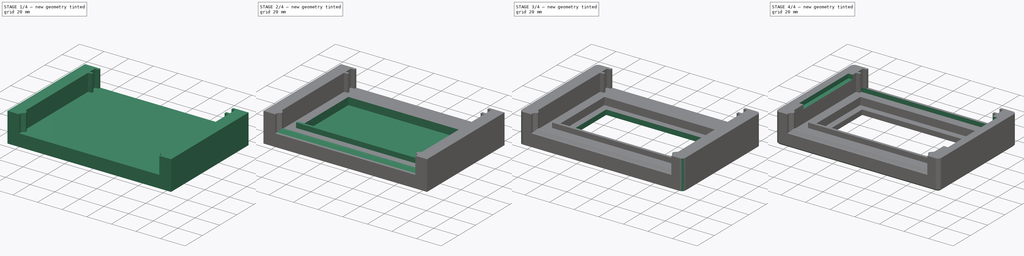
[diagram: build sequence overview — one tinted view per stage of 4, left to right]
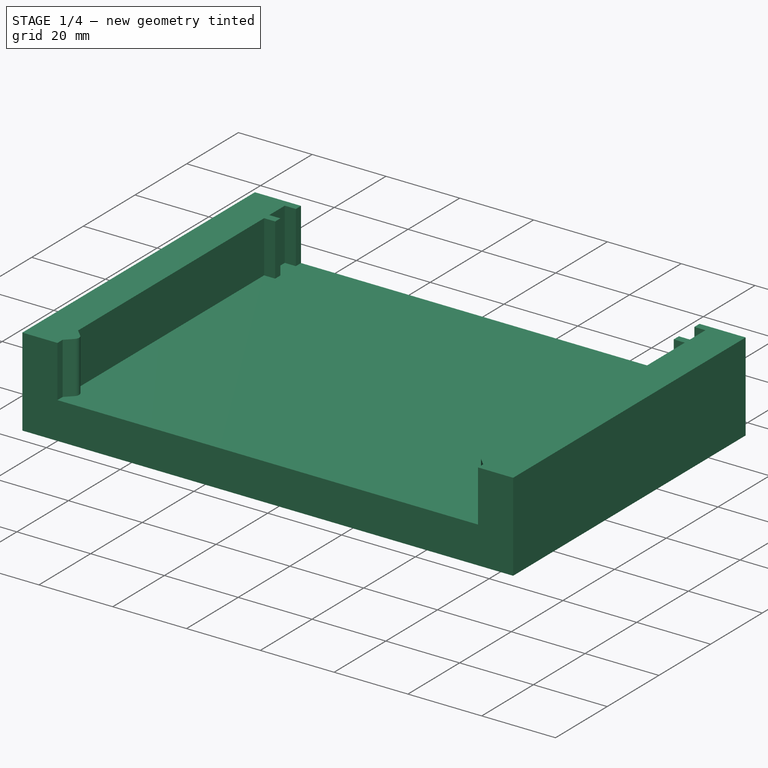
[diagram: stage 1 of 4 — iso view after this stage's code; geometry added in this stage tinted green]
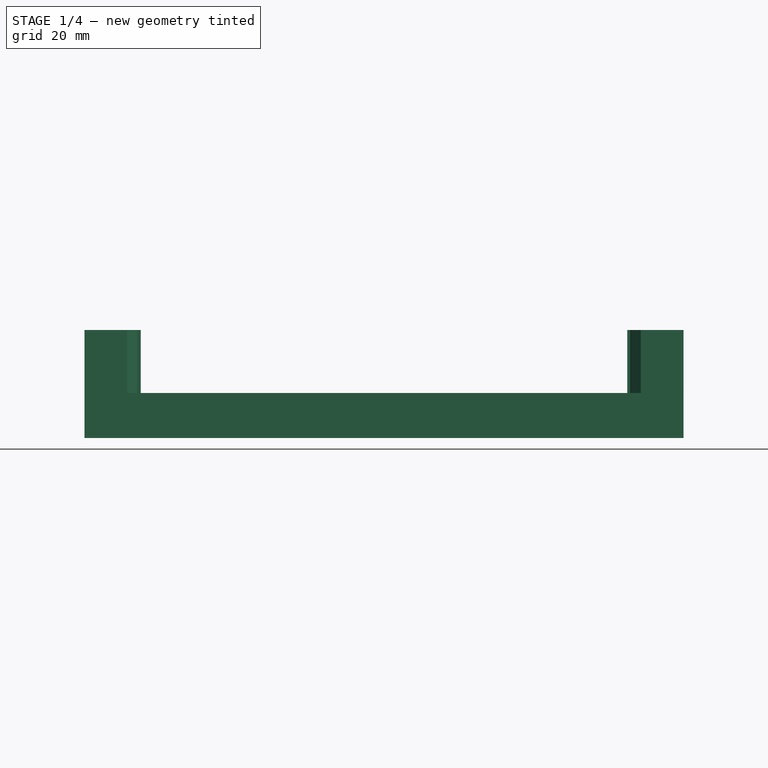
[diagram: stage 1 of 4 — front view after this stage's code; geometry added in this stage tinted green]
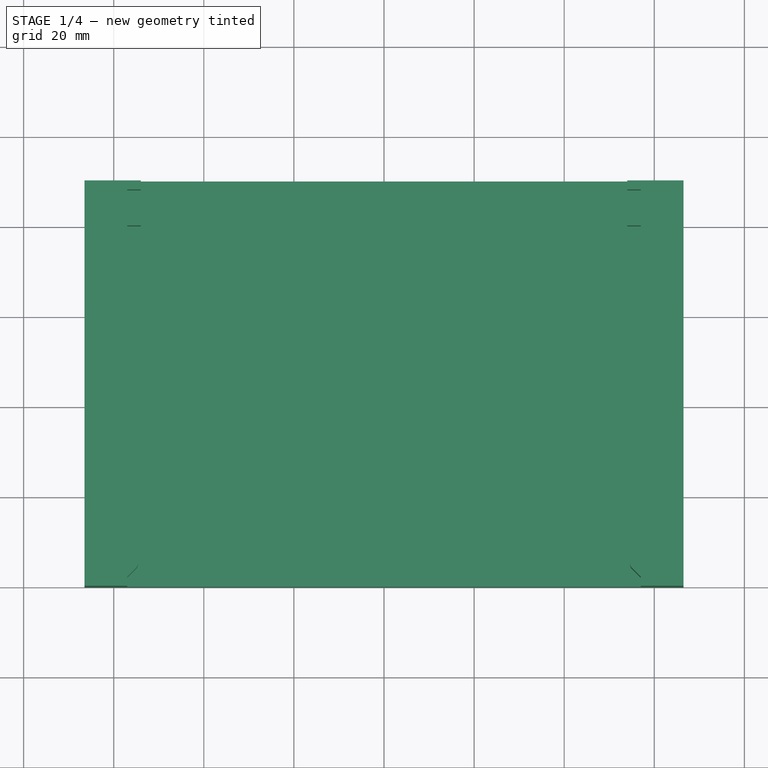
[diagram: stage 1 of 4 — top view after this stage's code; geometry added in this stage tinted green]
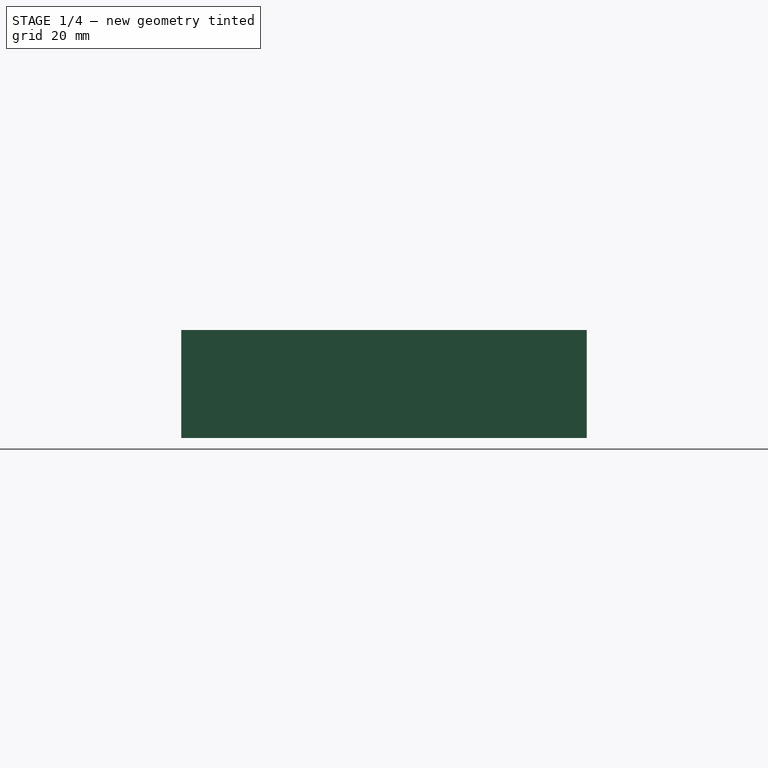
[diagram: stage 1 of 4 — right view after this stage's code; geometry added in this stage tinted green]
FCSTD DOCUMENT  (FreeCAD 0.17R13541 (Git))
Label: BikeTop4
License: All rights reserved
LicenseURL: http://en.wikipedia.org/wiki/All_rights_reserved
objects: Sketcher::SketchObject×8, PartDesign::Pad×4, PartDesign::Pocket×4, PartDesign::Fillet×2, PartDesign::Mirrored×1, PartDesign::Chamfer×1, PartDesign::Body×1
note: 29 computed .brp shape members not serialized (recipe doc carries the construction recipe); baked Part::Feature solids carry a one-line shape summary decoded from their .brp

FEATURE [Sketcher::SketchObject] Sketch
  MapMode = 5
  Support = -> [XY_Plane]
  sketch-geometry (4):
    g0: LineSegment StartX=-66.5 StartY=-40 StartZ=0 EndX=66.5 EndY=-40 EndZ=0
    g1: LineSegment StartX=66.5 StartY=-40 StartZ=0 EndX=66.5 EndY=50 EndZ=0
    g2: LineSegment StartX=66.5 StartY=50 StartZ=0 EndX=-66.5 EndY=50 EndZ=0
    g3: LineSegment StartX=-66.5 StartY=50 StartZ=0 EndX=-66.5 EndY=-40 EndZ=0
  constraints (12):
    c: Coincident(g0,g1)
    c: Coincident(g1,g2)
    c: Coincident(g2,g3)
    c: Coincident(g3,g0)
    c: Horizontal(g0)
    c: Horizontal(g2)
    c: Vertical(g1)
    c: Vertical(g3)
    c: DistanceX(g0,g0) = 133
    c: DistanceY(g0,g-1) = 40
    c: DistanceY(g-1,g1) = 50
    c: DistanceX(g-1,g0) = 66.5
FEATURE [PartDesign::Pad] Pad
  Length = 10
  Length2 = 100
  Profile = -> Sketch
  Type = 0
FEATURE [Sketcher::SketchObject] Sketch001
  ExternalGeometry = -> [Pad]
  MapMode = 5
  Support = -> [XY_Plane]
  sketch-geometry (14):
    g0: LineSegment StartX=-66.5 StartY=-40 StartZ=0 EndX=-66.5 EndY=50 EndZ=0
    g1: LineSegment StartX=-66.5 StartY=50 StartZ=0 EndX=-54 EndY=50 EndZ=0
    g2: LineSegment StartX=-54 StartY=50 StartZ=0 EndX=-54 EndY=48 EndZ=0
    g3: LineSegment StartX=-54 StartY=48 StartZ=0 EndX=-57 EndY=48 EndZ=0
    g4: LineSegment StartX=-57 StartY=48 StartZ=0 EndX=-57 EndY=42 EndZ=0
    g5: LineSegment StartX=-57 StartY=42 StartZ=0 EndX=-54 EndY=42 EndZ=0
    g6: LineSegment StartX=-54 StartY=42 StartZ=0 EndX=-54 EndY=40 EndZ=0
    g7: LineSegment StartX=-54 StartY=40 StartZ=0 EndX=-57 EndY=40 EndZ=0
    g8: LineSegment StartX=-57 StartY=40 StartZ=0 EndX=-57 EndY=-32 EndZ=0
    g9: LineSegment StartX=-57 StartY=-32 StartZ=0 EndX=-55.0607 EndY=-33.9393 EndZ=0
    g10: LineSegment StartX=-55.0607 StartY=-36.0607 StartZ=0 EndX=-57 EndY=-38 EndZ=0
    g11: LineSegment StartX=-57 StartY=-38 StartZ=0 EndX=-57 EndY=-40 EndZ=0
    g12: LineSegment StartX=-57 StartY=-40 StartZ=0 EndX=-66.5 EndY=-40 EndZ=0
    g13: ArcOfCircle CenterX=-56.1213 CenterY=-35 CenterZ=0 NormalX=0 NormalY=0 NormalZ=1 AngleXU=0 Radius=1.5 StartAngle=5.49779 EndAngle=7.06858
  constraints (39):
    c: Coincident(g0,g-3)
    c: Coincident(g0,g-3)
    c: Coincident(g1,g0)
    c: Horizontal(g1)
    c: Coincident(g2,g1)
    c: Vertical(g2)
    c: Coincident(g3,g2)
    c: Coincident(g4,g3)
    c: Vertical(g4)
    c: Coincident(g5,g4)
    c: Horizontal(g5)
    c: Coincident(g6,g5)
    c: Coincident(g7,g6)
    c: Horizontal(g7)
    c: Coincident(g8,g7)
    c: Vertical(g8)
    c: Coincident(g9,g8)
    c: Coincident(g12,g11)
    c: Coincident(g12,g0)
    c: Distance(g1) = 12.5
    c: Distance(g2) = 2
    c: Distance(g3) = 3
    c: Distance(g4) = 6
    c: Distance(g6) = 2
    c: Distance(g7) = 3
    c: Horizontal(g3)
    c: Distance(g5) = 3
    c: Vertical(g6)
    c: Coincident(g10,g11)
    c: Horizontal(g12)
    c: Vertical(g11)
    c: Angle(g11,g10) = 2.35619
    c: Perpendicular(g9,g10)
    c: DistanceX(g12,g12) = 9.5
    c: Distance(g11) = 2
    c: DistanceY(g10,g8) = 6
    c: Tangent(g9,g13) = 1.5708
    c: Tangent(g10,g13) = 1.5708
    c: Radius(g13) = 1.5
FEATURE [PartDesign::Pad] Pad001
  BaseFeature = -> Pad
  Length = 24
  Length2 = 100
  Profile = -> Sketch001
  Type = 0
FEATURE [PartDesign::Mirrored] Mirrored
  BaseFeature = -> Pad001
  MirrorPlane = -> Sketch001 [V_Axis]
  Originals = -> [Pad001]
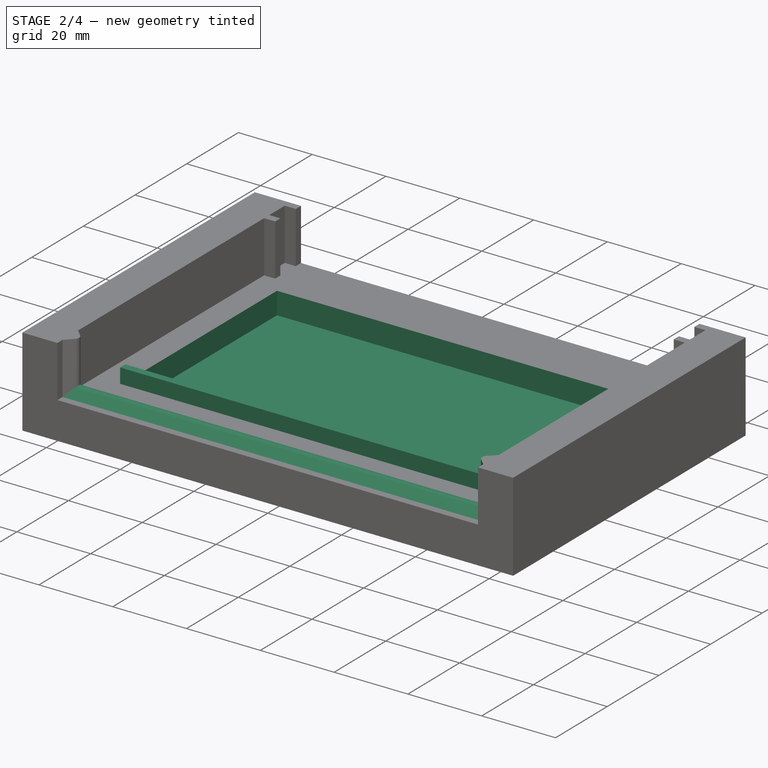
[diagram: stage 2 of 4 — iso view after this stage's code; geometry added in this stage tinted green]
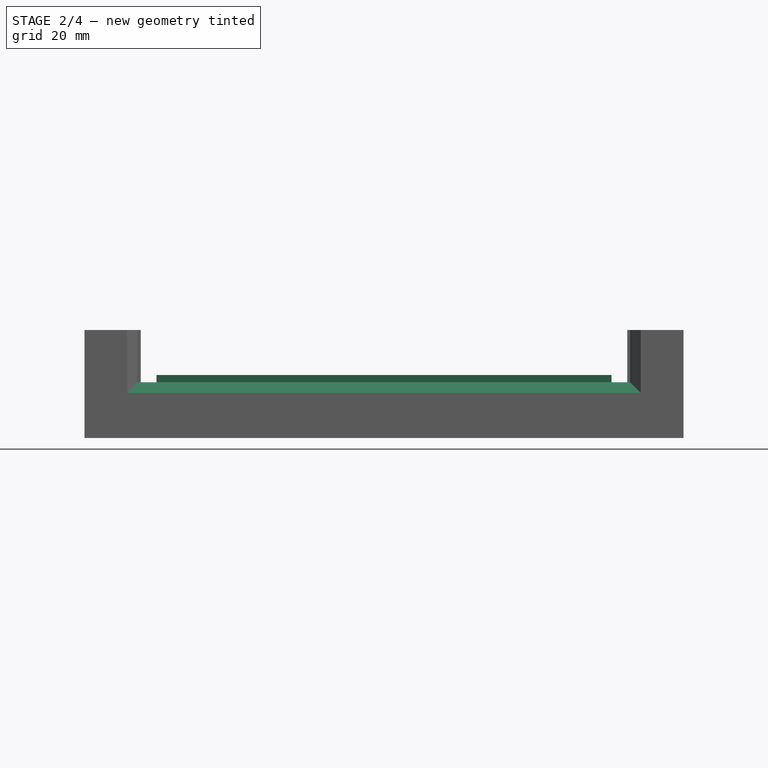
[diagram: stage 2 of 4 — front view after this stage's code; geometry added in this stage tinted green]
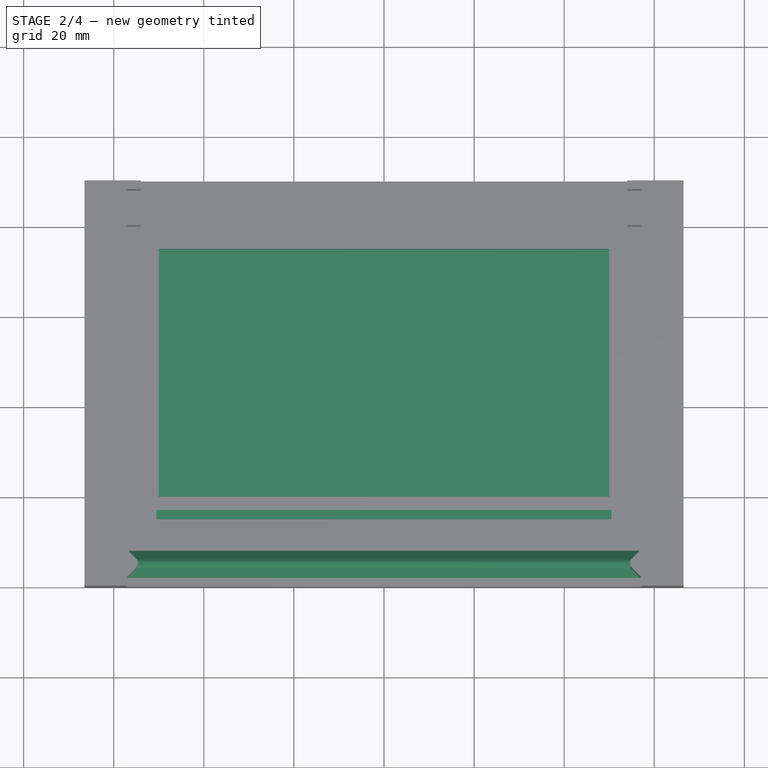
[diagram: stage 2 of 4 — top view after this stage's code; geometry added in this stage tinted green]
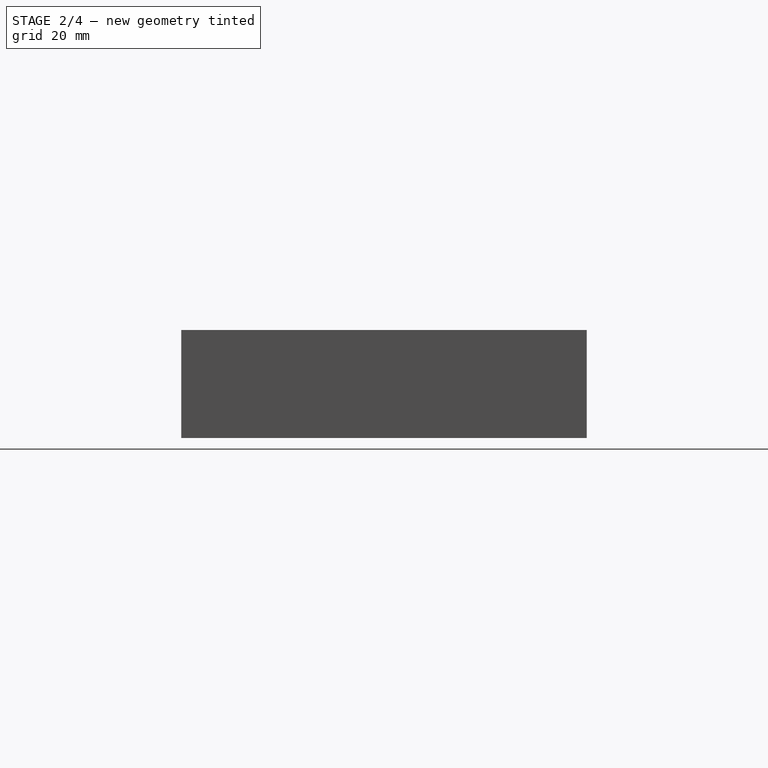
[diagram: stage 2 of 4 — right view after this stage's code; geometry added in this stage tinted green]
FEATURE [Sketcher::SketchObject] Sketch002
  ExternalGeometry = -> [Mirrored]
  MapMode = 5
  Placement = pos=(-66.5,0,0) rot=(0.57735,-0.57735,-0.57735;2.0944rad)
  Support = -> [Mirrored]
  sketch-geometry (4):
    g0: LineSegment StartX=32 StartY=10 StartZ=0 EndX=33.9393 EndY=11.9393 EndZ=0
    g1: LineSegment StartX=36.0607 StartY=11.9393 StartZ=0 EndX=38 EndY=10 EndZ=0
    g2: LineSegment StartX=38 StartY=10 StartZ=0 EndX=32 EndY=10 EndZ=0
    g3: ArcOfCircle CenterX=35 CenterY=10.8787 CenterZ=0 NormalX=0 NormalY=0 NormalZ=1 AngleXU=0 Radius=1.5 StartAngle=0.785398 EndAngle=2.35619
  constraints (11):
    c: Coincident(g2,g1)
    c: Coincident(g2,g0)
    c: Horizontal(g2)
    c: DistanceY(g0) = 10
    c: DistanceX(g1,g-3) = 2
    c: DistanceX(g0,g1) = 6
    c: Angle(g2,g0) = 0.785398
    c: Angle(g1,g2) = 0.785398
    c: Tangent(g0,g3) = 1.5708
    c: Tangent(g1,g3) = 1.5708
    c: Radius(g3) = 1.5
FEATURE [PartDesign::Pad] Pad002
  BaseFeature = -> Mirrored
  Length = 133
  Length2 = 100
  Profile = -> Sketch002
  Reversed = true
  Type = 0
FEATURE [Sketcher::SketchObject] Sketch003
  MapMode = 5
  Support = -> [XY_Plane]
  sketch-geometry (4):
    g0: LineSegment StartX=-50.5 StartY=-23 StartZ=0 EndX=50.5 EndY=-23 EndZ=0
    g1: LineSegment StartX=50.5 StartY=-23 StartZ=0 EndX=50.5 EndY=-25 EndZ=0
    g2: LineSegment StartX=50.5 StartY=-25 StartZ=0 EndX=-50.5 EndY=-25 EndZ=0
    g3: LineSegment StartX=-50.5 StartY=-25 StartZ=0 EndX=-50.5 EndY=-23 EndZ=0
  constraints (12):
    c: Coincident(g0,g1)
    c: Coincident(g1,g2)
    c: Coincident(g2,g3)
    c: Coincident(g3,g0)
    c: Horizontal(g0)
    c: Horizontal(g2)
    c: Vertical(g1)
    c: Vertical(g3)
    c: DistanceX(g1,g-1) = -50.5
    c: DistanceY(g1,g-1) = 25
    c: DistanceY(g3,g3) = 2
    c: DistanceX(g2,g-1) = 50.5
FEATURE [PartDesign::Pad] Pad003
  BaseFeature = -> Pad002
  Length = 14
  Length2 = 100
  Profile = -> Sketch003
  Type = 0
FEATURE [Sketcher::SketchObject] Sketch004
  MapMode = 5
  Placement = pos=(0,0,10) rot=(0,0,1;0rad)
  Support = -> [Pad003]
  sketch-geometry (4):
    g0: LineSegment StartX=-50 StartY=-20 StartZ=0 EndX=50 EndY=-20 EndZ=0
    g1: LineSegment StartX=50 StartY=-20 StartZ=0 EndX=50 EndY=35 EndZ=0
    g2: LineSegment StartX=50 StartY=35 StartZ=0 EndX=-50 EndY=35 EndZ=0
    g3: LineSegment StartX=-50 StartY=35 StartZ=0 EndX=-50 EndY=-20 EndZ=0
  constraints (12):
    c: Coincident(g0,g1)
    c: Coincident(g1,g2)
    c: Coincident(g2,g3)
    c: Coincident(g3,g0)
    c: Horizontal(g0)
    c: Horizontal(g2)
    c: Vertical(g1)
    c: Vertical(g3)
    c: DistanceX(g0) = 50
    c: DistanceY(g0) = -20
    c: DistanceX(g0,g-1) = 50
    c: DistanceY(g-1,g1) = 35
FEATURE [PartDesign::Pocket] Pocket
  BaseFeature = -> Pad003
  Length = 6
  Length2 = 100
  Profile = -> Sketch004
  Type = 0
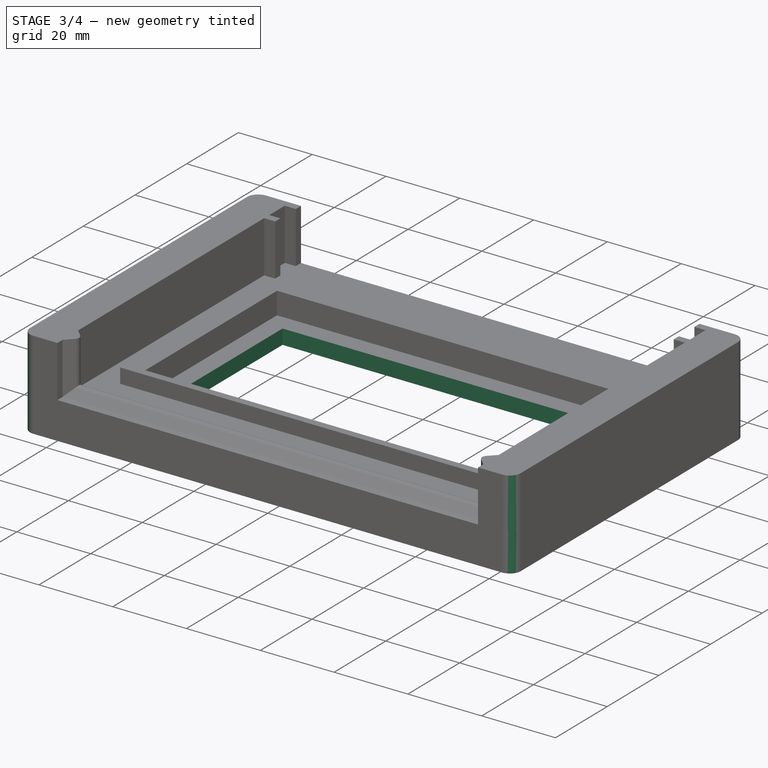
[diagram: stage 3 of 4 — iso view after this stage's code; geometry added in this stage tinted green]
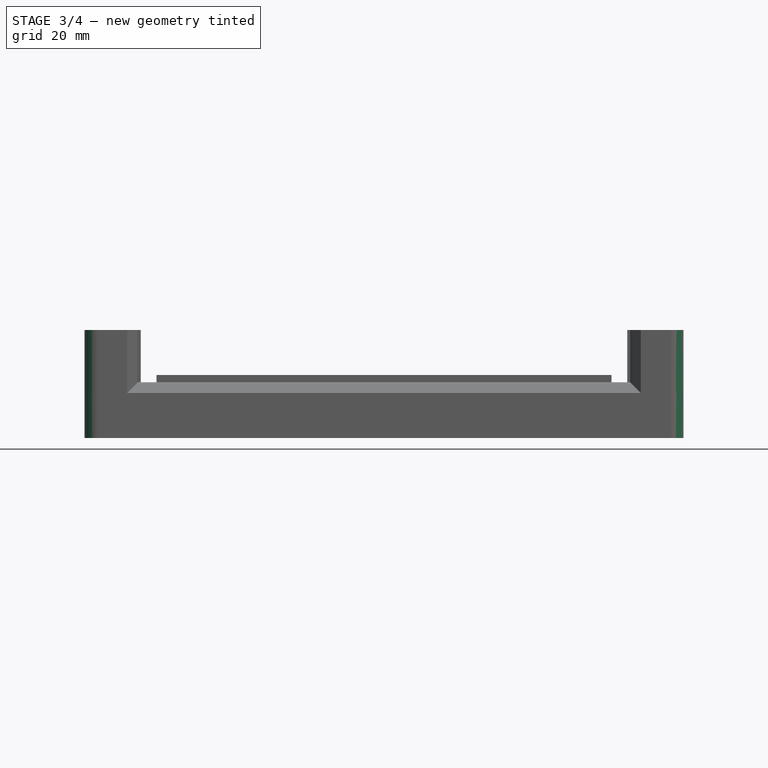
[diagram: stage 3 of 4 — front view after this stage's code; geometry added in this stage tinted green]
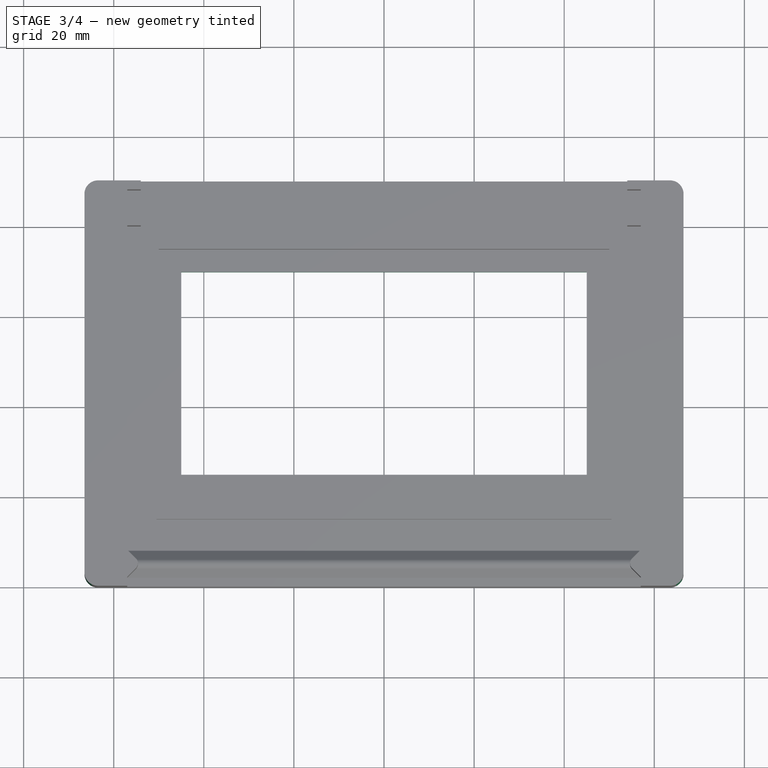
[diagram: stage 3 of 4 — top view after this stage's code; geometry added in this stage tinted green]
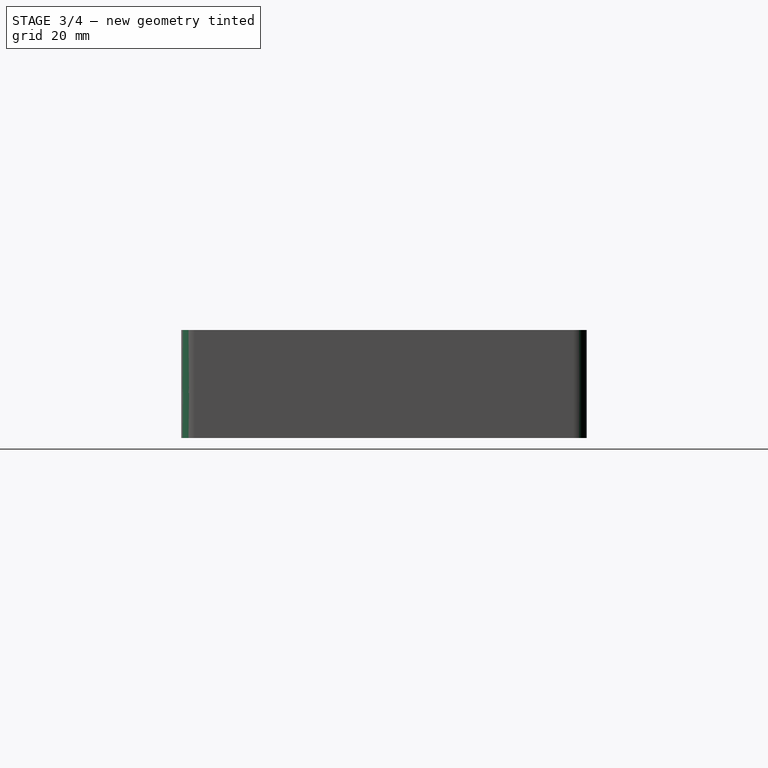
[diagram: stage 3 of 4 — right view after this stage's code; geometry added in this stage tinted green]
FEATURE [Sketcher::SketchObject] Sketch005
  MapMode = 5
  Support = -> [XY_Plane]
  sketch-geometry (4):
    g0: LineSegment StartX=-45 StartY=-15 StartZ=0 EndX=45 EndY=-15 EndZ=0
    g1: LineSegment StartX=45 StartY=-15 StartZ=0 EndX=45 EndY=30 EndZ=0
    g2: LineSegment StartX=45 StartY=30 StartZ=0 EndX=-45 EndY=30 EndZ=0
    g3: LineSegment StartX=-45 StartY=30 StartZ=0 EndX=-45 EndY=-15 EndZ=0
  constraints (12):
    c: Coincident(g0,g1)
    c: Coincident(g1,g2)
    c: Coincident(g2,g3)
    c: Coincident(g3,g0)
    c: Horizontal(g0)
    c: Horizontal(g2)
    c: Vertical(g1)
    c: Vertical(g3)
    c: DistanceX(g0) = 45
    c: DistanceY(g0) = -15
    c: DistanceX(g0,g-1) = 45
    c: DistanceY(g-1,g1) = 30
FEATURE [PartDesign::Pocket] Pocket001
  BaseFeature = -> Pocket
  Length = 5
  Length2 = 100
  Profile = -> Sketch005
  Reversed = true
  Type = 1
FEATURE [PartDesign::Fillet] Fillet
  Base = -> Pocket001 [Edge87,Edge141,Edge51,Edge91]
  BaseFeature = -> Pocket001
  Radius = 3
FEATURE [PartDesign::Fillet] Fillet001
  Base = -> Fillet [Edge105,Edge63,Edge165,Edge107]
  BaseFeature = -> Fillet
  Radius = 3
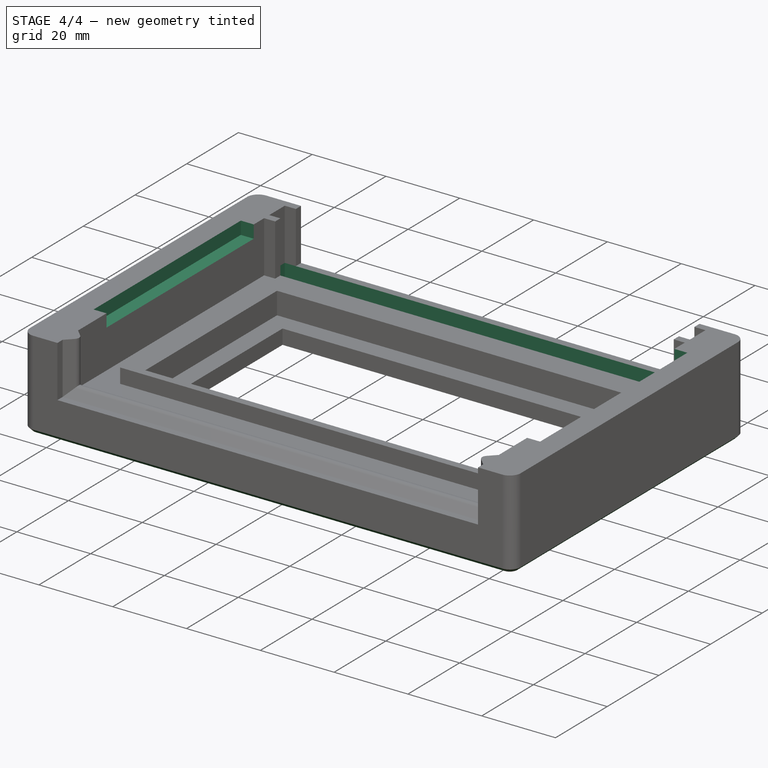
[diagram: stage 4 of 4 — iso view after this stage's code; geometry added in this stage tinted green]
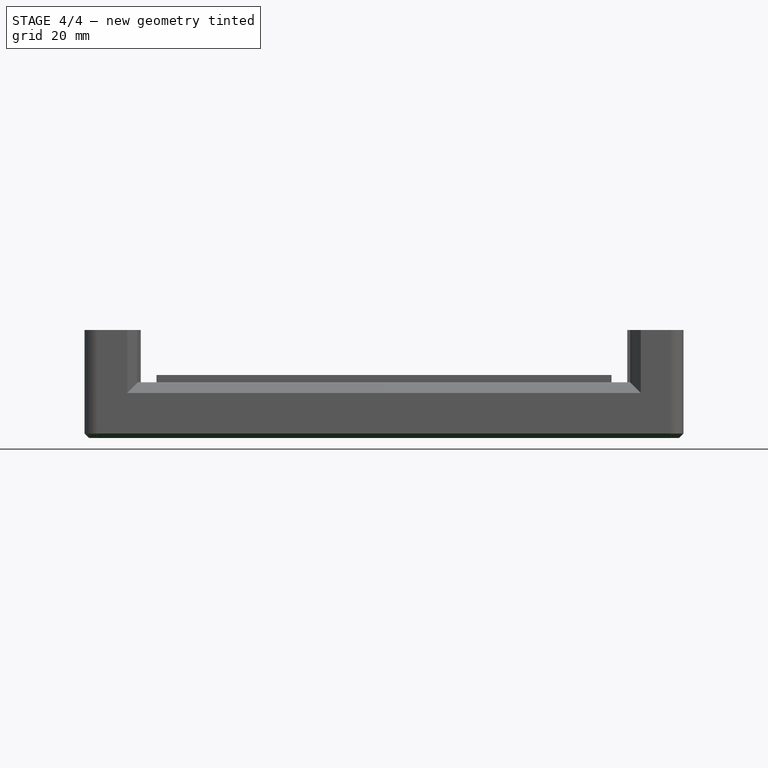
[diagram: stage 4 of 4 — front view after this stage's code; geometry added in this stage tinted green]
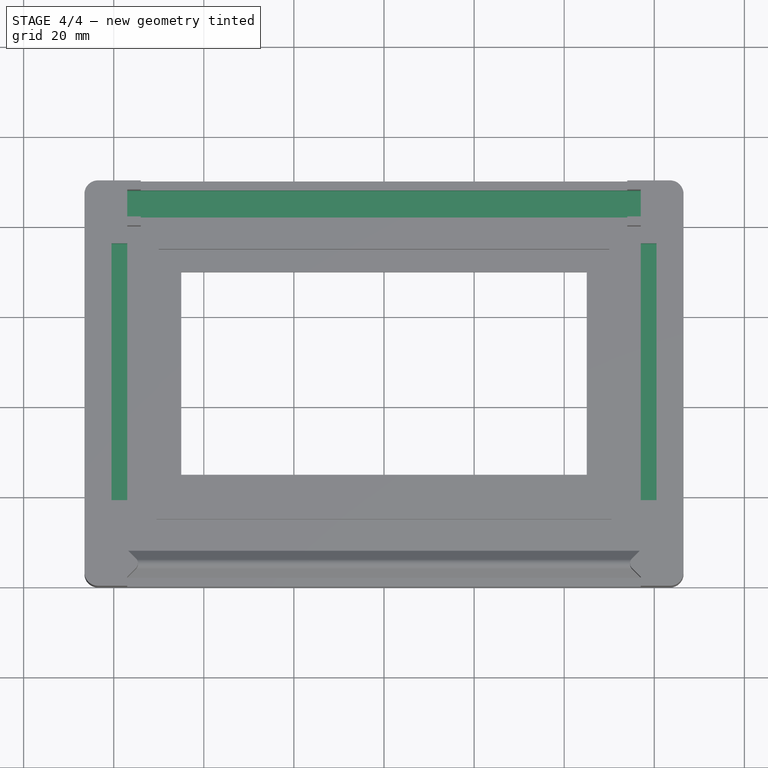
[diagram: stage 4 of 4 — top view after this stage's code; geometry added in this stage tinted green]
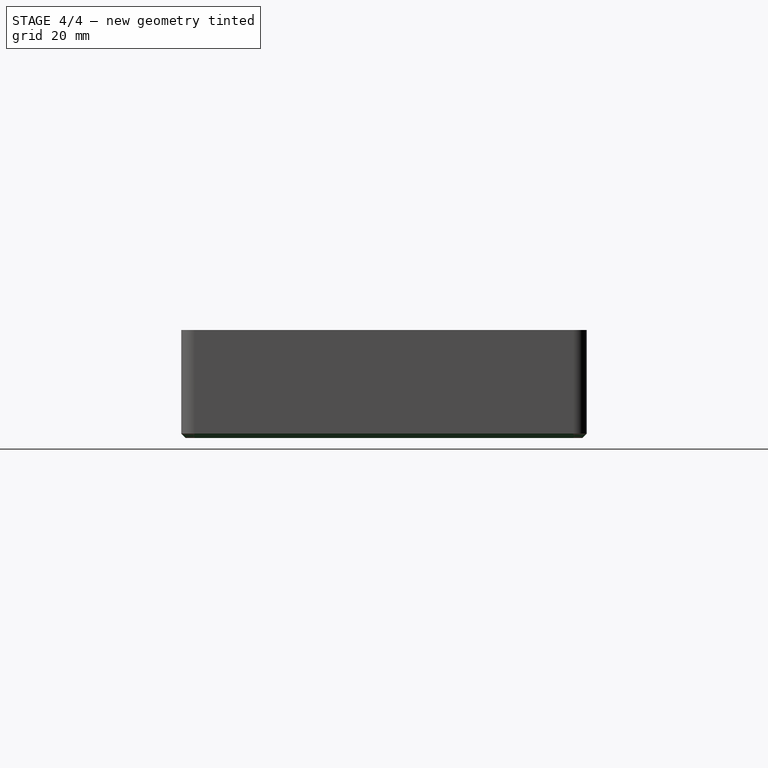
[diagram: stage 4 of 4 — right view after this stage's code; geometry added in this stage tinted green]
FEATURE [PartDesign::Chamfer] Chamfer
  Base = -> Fillet001 [Edge43,Edge8,Edge6,Edge5,Edge7,Edge1,Edge22,Edge58,Edge92,Edge91,Edge90,Edge89]
  BaseFeature = -> Fillet001
  Size = 1
FEATURE [Sketcher::SketchObject] Sketch006
  MapMode = 5
  Placement = pos=(0,0,0) rot=(0.57735,0.57735,0.57735;2.0944rad)
  Support = -> [YZ_Plane]
  sketch-geometry (4):
    g0: LineSegment StartX=42 StartY=11 StartZ=0 EndX=48 EndY=11 EndZ=0
    g1: LineSegment StartX=48 StartY=11 StartZ=0 EndX=48 EndY=5 EndZ=0
    g2: LineSegment StartX=48 StartY=5 StartZ=0 EndX=42 EndY=5 EndZ=0
    g3: LineSegment StartX=42 StartY=5 StartZ=0 EndX=42 EndY=11 EndZ=0
  constraints (12):
    c: Coincident(g0,g1)
    c: Coincident(g1,g2)
    c: Coincident(g2,g3)
    c: Coincident(g3,g0)
    c: Horizontal(g0)
    c: Horizontal(g2)
    c: Vertical(g1)
    c: Vertical(g3)
    c: DistanceX(g0) = 48
    c: DistanceY(g0) = 11
    c: DistanceY(g1,g1) = 6
    c: DistanceX(g2,g2) = 6
FEATURE [PartDesign::Pocket] Pocket002
  BaseFeature = -> Chamfer
  Length = 57
  Length2 = 57
  Profile = -> Sketch006
  Type = 4
FEATURE [Sketcher::SketchObject] Sketch007
  MapMode = 5
  Placement = pos=(0,0,24) rot=(0,0,1;0rad)
  Support = -> [Pocket002]
  sketch-geometry (8):
    g0: LineSegment StartX=57 StartY=-21 StartZ=0 EndX=60.5 EndY=-21 EndZ=0
    g1: LineSegment StartX=60.5 StartY=-21 StartZ=0 EndX=60.5 EndY=36 EndZ=0
    g2: LineSegment StartX=60.5 StartY=36 StartZ=0 EndX=57 EndY=36 EndZ=0
    g3: LineSegment StartX=57 StartY=36 StartZ=0 EndX=57 EndY=-21 EndZ=0
    g4: LineSegment StartX=-57 StartY=-21 StartZ=0 EndX=-60.5 EndY=-21 EndZ=0
    g5: LineSegment StartX=-60.5 StartY=-21 StartZ=0 EndX=-60.5 EndY=36 EndZ=0
    g6: LineSegment StartX=-60.5 StartY=36 StartZ=0 EndX=-57 EndY=36 EndZ=0
    g7: LineSegment StartX=-57 StartY=36 StartZ=0 EndX=-57 EndY=-21 EndZ=0
  constraints (24):
    c: Coincident(g0,g1)
    c: Coincident(g1,g2)
    c: Coincident(g2,g3)
    c: Coincident(g3,g0)
    c: Horizontal(g0)
    c: Horizontal(g2)
    c: Vertical(g1)
    c: Vertical(g3)
    c: Coincident(g4,g5)
    c: Coincident(g5,g6)
    c: Coincident(g6,g7)
    c: Coincident(g7,g4)
    c: Horizontal(g4)
    c: Horizontal(g6)
    c: Vertical(g5)
    c: Vertical(g7)
    c: DistanceX(g0,g-1) = -57
    c: DistanceY(g0,g-1) = 21
    c: DistanceX(g4) = -57
    c: DistanceY(g4) = -21
    c: DistanceY(g1,g1) = 57
    c: DistanceY(g5,g5) = 57
    c: DistanceX(g2,g2) = 3.5
    c: DistanceX(g6,g6) = 3.5
FEATURE [PartDesign::Pocket] Pocket003
  BaseFeature = -> Pocket002
  Length = 3.5
  Length2 = 100
  Profile = -> Sketch007
  Type = 0
FEATURE [PartDesign::Body] Body
  Group = -> [Sketch,Pad,Sketch001,Pad001,Mirrored,Sketch002,Pad002,Sketch003,Pad003,Sketch004,Pocket,Sketch005,Pocket001,Fillet,Fillet001,Chamfer,Sketch006,Pocket002,Sketch007,Pocket003]
  Origin = -> Origin
  Tip = -> Pocket003
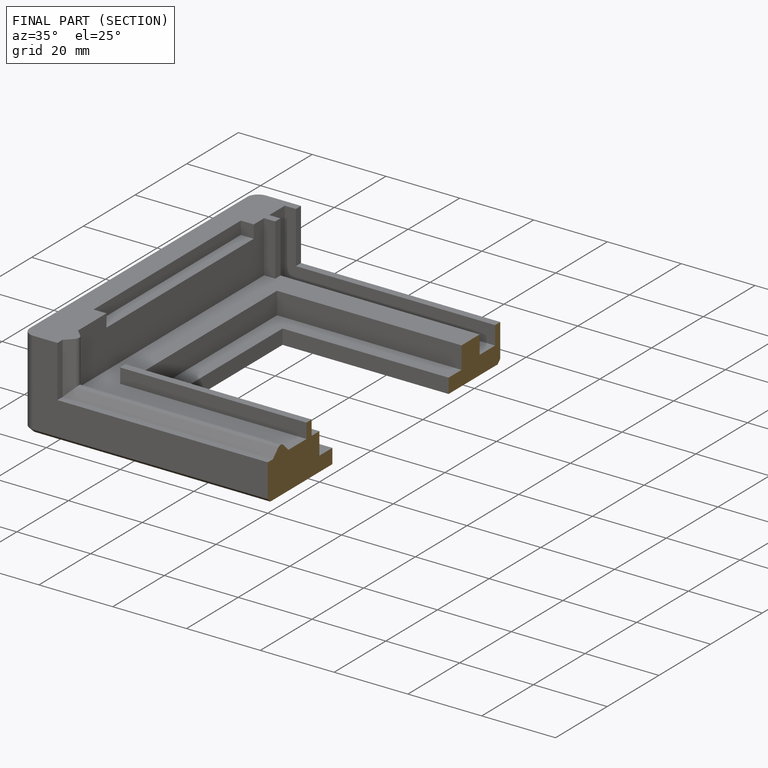
[diagram: finished part — half-section view (interior)]
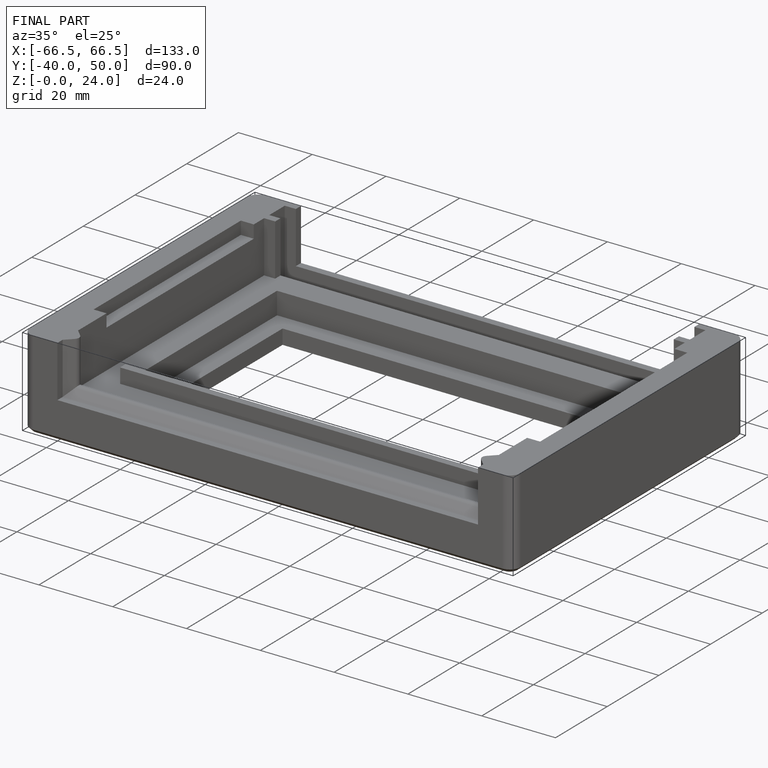
[diagram: finished part — iso view with bounding-box wireframe]
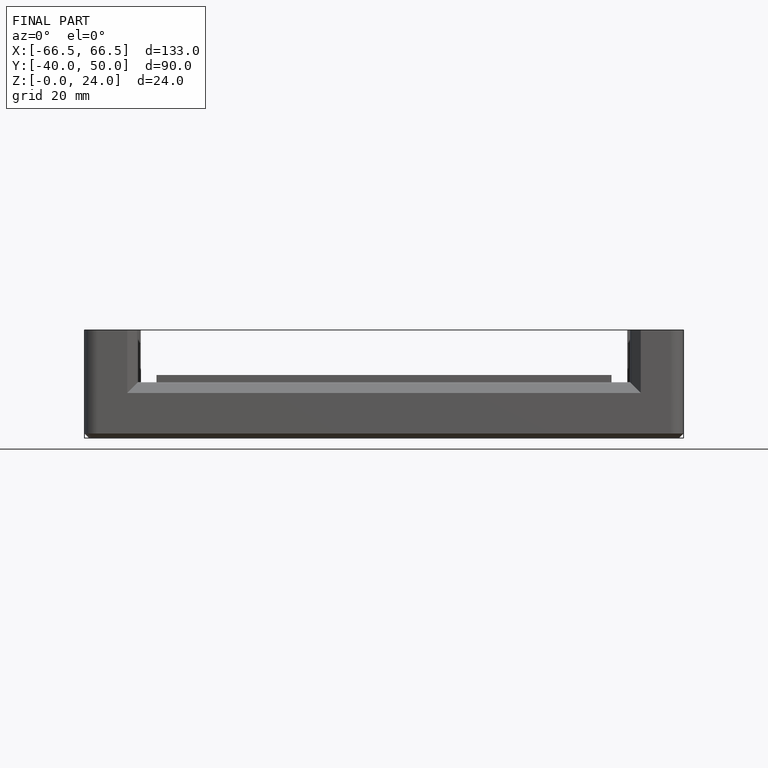
[diagram: finished part — front view with bounding-box wireframe]
